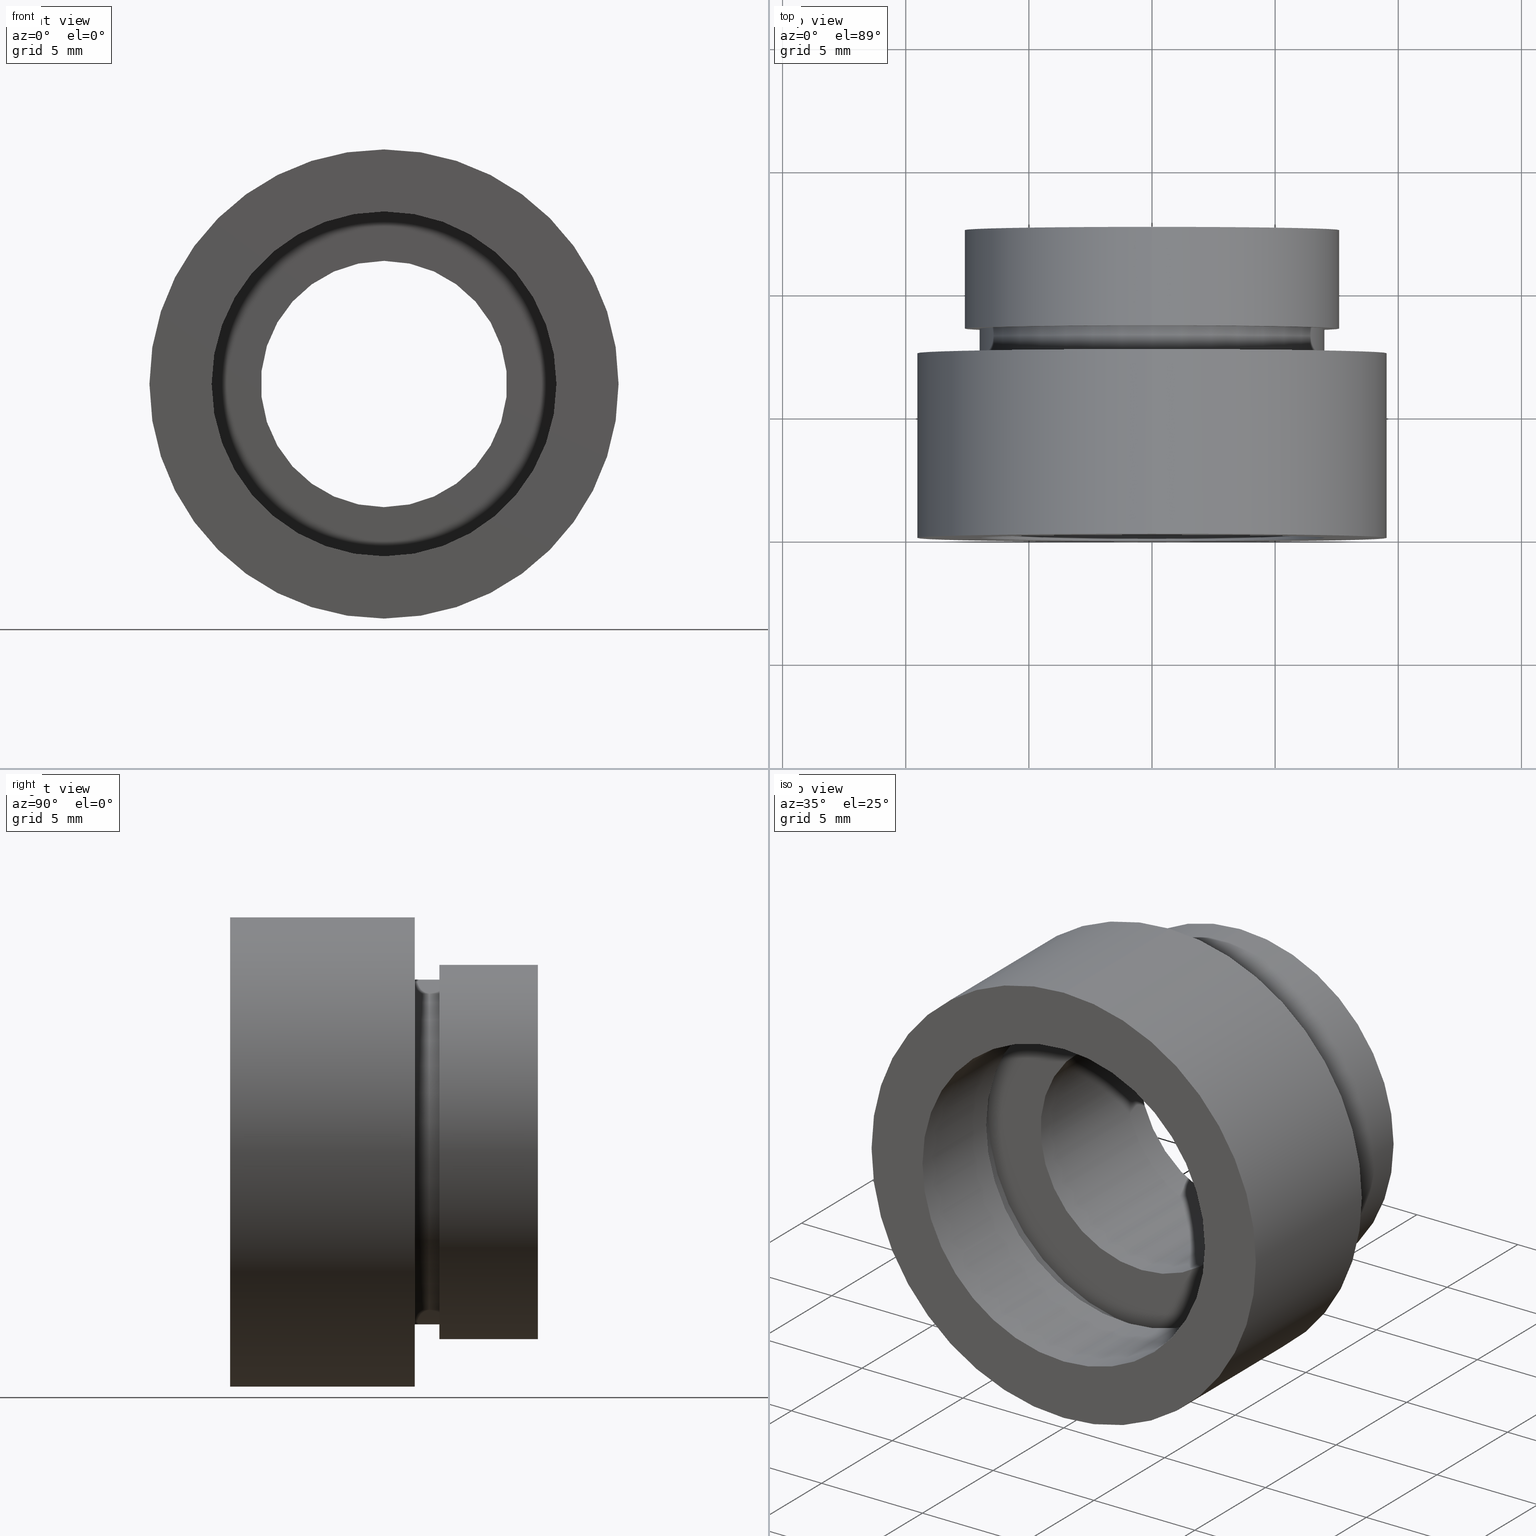
[diagram: canonical four-view strip — front | top / right | iso, engineering-drawing reading convention]
A machine part, canonical four-view strip (front | top / right | iso — engineering-drawing reading convention). The complete STEP part file that produces these views, byte-faithful:
ISO-10303-21;
HEADER;
FILE_DESCRIPTION (( 'STEP AP214' ),
    '1' );
FILE_NAME ('503093.STEP',
    '2019-09-11T07:29:55',
    ( '' ),
    ( '' ),
    'SwSTEP 2.0',
    'SolidWorks 2016',
    '' );
FILE_SCHEMA (( 'AUTOMOTIVE_DESIGN' ));
ENDSEC;

DATA;
#1 =( LENGTH_UNIT ( ) NAMED_UNIT ( * ) SI_UNIT ( .MILLI., .METRE. ) );
#2 = AXIS2_PLACEMENT_3D ( 'NONE', #516, #370, #565 ) ;
#3 = SURFACE_STYLE_FILL_AREA ( #72 ) ;
#4 = DIRECTION ( 'NONE',  ( -0.0000000000000000000, 1.000000000000000000, -0.0000000000000000000 ) ) ;
#5 = EDGE_LOOP ( 'NONE', ( #576, #388 ) ) ;
#6 = EDGE_CURVE ( 'NONE', #554, #219, #45, .T. ) ;
#7 = SURFACE_STYLE_USAGE ( .BOTH. , #226 ) ;
#8 = DIRECTION ( 'NONE',  ( 0.0000000000000000000, 0.0000000000000000000, 1.000000000000000000 ) ) ;
#9 = CARTESIAN_POINT ( 'NONE',  ( 0.0000000000000000000, 5.499999999999976900, 0.0000000000000000000 ) ) ;
#10 = DIRECTION ( 'NONE',  ( 0.0000000000000000000, -1.000000000000000000, 0.0000000000000000000 ) ) ;
#11 = EDGE_LOOP ( 'NONE', ( #195, #555, #615, #594 ) ) ;
#12 = VERTEX_POINT ( 'NONE', #309 ) ;
#13 = CARTESIAN_POINT ( 'NONE',  ( 0.0000000000000000000, 8.499999999999980500, 7.000000000000018700 ) ) ;
#14 = FILL_AREA_STYLE_COLOUR ( '', #183 ) ;
#15 = CIRCLE ( 'NONE', #502, 7.600000000000020100 ) ;
#16 = DIRECTION ( 'NONE',  ( -0.0000000000000000000, 1.000000000000000000, -0.0000000000000000000 ) ) ;
#17 = VERTEX_POINT ( 'NONE', #549 ) ;
#18 = ORIENTED_EDGE ( 'NONE', *, *, #113, .T. ) ;
#19 = AXIS2_PLACEMENT_3D ( 'NONE', #464, #519, #174 ) ;
#20 =( NAMED_UNIT ( * ) SI_UNIT ( $, .STERADIAN. ) SOLID_ANGLE_UNIT ( ) );
#21 = COLOUR_RGB ( '',1.000000000000000000, 1.000000000000000000, 1.000000000000000000 ) ;
#22 = AXIS2_PLACEMENT_3D ( 'NONE', #517, #315, #163 ) ;
#23 = MECHANICAL_DESIGN_GEOMETRIC_PRESENTATION_REPRESENTATION (  '', ( #64 ), #96 ) ;
#24 = CARTESIAN_POINT ( 'NONE',  ( 9.307315673519905200E-016, 8.499999999999980500, -7.600000000000018300 ) ) ;
#25 = VERTEX_POINT ( 'NONE', #250 ) ;
#26 = FILL_AREA_STYLE ('',( #119 ) ) ;
#27 = DIRECTION ( 'NONE',  ( 1.000000000000000000, 0.0000000000000000000, 0.0000000000000000000 ) ) ;
#28 =( NAMED_UNIT ( * ) SI_UNIT ( $, .STERADIAN. ) SOLID_ANGLE_UNIT ( ) );
#29 = COLOUR_RGB ( '',1.000000000000000000, 1.000000000000000000, 1.000000000000000000 ) ;
#30 = ORIENTED_EDGE ( 'NONE', *, *, #66, .F. ) ;
#31 = ORIENTED_EDGE ( 'NONE', *, *, #422, .T. ) ;
#32 = AXIS2_PLACEMENT_3D ( 'NONE', #212, #89, #463 ) ;
#33 = SURFACE_SIDE_STYLE ('',( #497 ) ) ;
#34 = FILL_AREA_STYLE_COLOUR ( '', #291 ) ;
#35 = CIRCLE ( 'NONE', #132, 9.525000000000019900 ) ;
#36 = CARTESIAN_POINT ( 'NONE',  ( 6.123233995736789000E-016, 5.499999999999976900, -5.000000000000019500 ) ) ;
#37 = VECTOR ( 'NONE', #221, 1000.000000000000000 ) ;
#38 = VERTEX_POINT ( 'NONE', #160 ) ;
#39 =( LENGTH_UNIT ( ) NAMED_UNIT ( * ) SI_UNIT ( .MILLI., .METRE. ) );
#40 = AXIS2_PLACEMENT_3D ( 'NONE', #83, #563, #125 ) ;
#41 = DIRECTION ( 'NONE',  ( -0.0000000000000000000, 1.000000000000000000, -0.0000000000000000000 ) ) ;
#42 = DIRECTION ( 'NONE',  ( -0.0000000000000000000, 1.000000000000000000, -0.0000000000000000000 ) ) ;
#43 = DIRECTION ( 'NONE',  ( -0.0000000000000000000, 1.000000000000000000, -0.0000000000000000000 ) ) ;
#44 = EDGE_CURVE ( 'NONE', #470, #505, #15, .T. ) ;
#45 = LINE ( 'NONE', #608, #417 ) ;
#46 = FILL_AREA_STYLE_COLOUR ( '', #449 ) ;
#47 = VERTEX_POINT ( 'NONE', #24 ) ;
#48 = DIRECTION ( 'NONE',  ( 0.0000000000000000000, 0.0000000000000000000, 1.000000000000000000 ) ) ;
#49 =( NAMED_UNIT ( * ) SI_UNIT ( $, .STERADIAN. ) SOLID_ANGLE_UNIT ( ) );
#50 =( NAMED_UNIT ( * ) PLANE_ANGLE_UNIT ( ) SI_UNIT ( $, .RADIAN. ) );
#51 = CYLINDRICAL_SURFACE ( 'NONE', #491, 7.000000000000018700 ) ;
#52 = DIRECTION ( 'NONE',  ( -0.0000000000000000000, 1.000000000000000000, -0.0000000000000000000 ) ) ;
#53 = CIRCLE ( 'NONE', #613, 9.525000000000019900 ) ;
#54 = CIRCLE ( 'NONE', #348, 7.000000000000018700 ) ;
#55 = EDGE_CURVE ( 'NONE', #219, #25, #458, .T. ) ;
#56 = AXIS2_PLACEMENT_3D ( 'NONE', #435, #16, #152 ) ;
#57 = DIRECTION ( 'NONE',  ( 0.0000000000000000000, -1.000000000000000000, 0.0000000000000000000 ) ) ;
#58 = FILL_AREA_STYLE ('',( #339 ) ) ;
#59 = PRESENTATION_STYLE_ASSIGNMENT (( #447 ) ) ;
#60 = CYLINDRICAL_SURFACE ( 'NONE', #335, 7.600000000000018300 ) ;
#61 = ADVANCED_FACE ( 'NONE', ( #546 ), #322, .T. ) ;
#62 = CYLINDRICAL_SURFACE ( 'NONE', #453, 7.000000000000018700 ) ;
#63 = ORIENTED_EDGE ( 'NONE', *, *, #220, .F. ) ;
#64 = STYLED_ITEM ( 'NONE', ( #337 ), #494 ) ;
#65 = ADVANCED_FACE ( 'NONE', ( #211, #426 ), #162, .F. ) ;
#66 = EDGE_CURVE ( 'NONE', #38, #122, #276, .T. ) ;
#67 = DIRECTION ( 'NONE',  ( 0.0000000000000000000, 0.0000000000000000000, 1.000000000000000000 ) ) ;
#68 = ADVANCED_FACE ( 'NONE', ( #331 ), #586, .F. ) ;
#69 = ORIENTED_EDGE ( 'NONE', *, *, #465, .F. ) ;
#70 = SURFACE_SIDE_STYLE ('',( #3 ) ) ;
#71 = ADVANCED_FACE ( 'NONE', ( #441 ), #184, .F. ) ;
#72 = FILL_AREA_STYLE ('',( #248 ) ) ;
#73 = DIRECTION ( 'NONE',  ( -0.0000000000000000000, 1.000000000000000000, -0.0000000000000000000 ) ) ;
#74 = SURFACE_SIDE_STYLE ('',( #134 ) ) ;
#75 = PRODUCT ( '503093', '503093', '', ( #501 ) ) ;
#76 = EDGE_CURVE ( 'NONE', #525, #468, #54, .T. ) ;
#77 = LINE ( 'NONE', #272, #515 ) ;
#78 = EDGE_LOOP ( 'NONE', ( #100, #353, #433, #419 ) ) ;
#79 = DIRECTION ( 'NONE',  ( -0.0000000000000000000, 1.000000000000000000, -0.0000000000000000000 ) ) ;
#80 = AXIS2_PLACEMENT_3D ( 'NONE', #567, #571, #577 ) ;
#81 = CIRCLE ( 'NONE', #288, 7.000000000000018700 ) ;
#82 = PRODUCT_DEFINITION_CONTEXT ( 'detailed design', #306, 'design' ) ;
#83 = CARTESIAN_POINT ( 'NONE',  ( 0.0000000000000000000, 161.3761669434274500, 0.0000000000000000000 ) ) ;
#84 = ORIENTED_EDGE ( 'NONE', *, *, #432, .F. ) ;
#85 = ORIENTED_EDGE ( 'NONE', *, *, #66, .T. ) ;
#86 = EDGE_CURVE ( 'NONE', #47, #554, #561, .T. ) ;
#87 = AXIS2_PLACEMENT_3D ( 'NONE', #552, #351, #156 ) ;
#88 = SURFACE_STYLE_USAGE ( .BOTH. , #135 ) ;
#89 = DIRECTION ( 'NONE',  ( -0.0000000000000000000, 1.000000000000000000, -0.0000000000000000000 ) ) ;
#90 = FACE_OUTER_BOUND ( 'NONE', #161, .T. ) ;
#91 = CARTESIAN_POINT ( 'NONE',  ( 0.0000000000000000000, 8.499999999999980500, 0.0000000000000000000 ) ) ;
#92 = COLOUR_RGB ( '',1.000000000000000000, 1.000000000000000000, 1.000000000000000000 ) ;
#93 = ORIENTED_EDGE ( 'NONE', *, *, #86, .F. ) ;
#94 = EDGE_LOOP ( 'NONE', ( #381, #504 ) ) ;
#95 = CARTESIAN_POINT ( 'NONE',  ( 0.0000000000000000000, 12.49999999999998400, 7.600000000000018300 ) ) ;
#96 =( GEOMETRIC_REPRESENTATION_CONTEXT ( 3 ) GLOBAL_UNCERTAINTY_ASSIGNED_CONTEXT ( ( #110 ) ) GLOBAL_UNIT_ASSIGNED_CONTEXT ( ( #347, #539, #49 ) ) REPRESENTATION_CONTEXT ( 'NONE', 'WORKASPACE' ) );
#97 = DIRECTION ( 'NONE',  ( -0.0000000000000000000, 1.000000000000000000, -0.0000000000000000000 ) ) ;
#98 = PRESENTATION_LAYER_ASSIGNMENT (  '', '', ( #520 ) ) ;
#99 = DIRECTION ( 'NONE',  ( 0.0000000000000000000, 0.0000000000000000000, 1.000000000000000000 ) ) ;
#100 = ORIENTED_EDGE ( 'NONE', *, *, #358, .F. ) ;
#101 = CARTESIAN_POINT ( 'NONE',  ( 0.0000000000000000000, 161.3761669434274500, 0.0000000000000000000 ) ) ;
#102 = CARTESIAN_POINT ( 'NONE',  ( 7.000000000000020400, 4.499999999999983100, 0.0000000000000000000 ) ) ;
#103 = EDGE_CURVE ( 'NONE', #444, #151, #300, .T. ) ;
#104 = AXIS2_PLACEMENT_3D ( 'NONE', #325, #43, #265 ) ;
#105 = ORIENTED_EDGE ( 'NONE', *, *, #357, .T. ) ;
#106 = DIRECTION ( 'NONE',  ( -0.0000000000000000000, 1.000000000000000000, -0.0000000000000000000 ) ) ;
#107 = ORIENTED_EDGE ( 'NONE', *, *, #377, .T. ) ;
#108 = EDGE_CURVE ( 'NONE', #459, #556, #316, .T. ) ;
#109 = DIRECTION ( 'NONE',  ( 0.0000000000000000000, 0.0000000000000000000, 1.000000000000000000 ) ) ;
#110 = UNCERTAINTY_MEASURE_WITH_UNIT (LENGTH_MEASURE( 1.000000000000000100E-005 ), #347, 'distance_accuracy_value', 'NONE');
#111 = VERTEX_POINT ( 'NONE', #317 ) ;
#112 =( GEOMETRIC_REPRESENTATION_CONTEXT ( 3 ) GLOBAL_UNCERTAINTY_ASSIGNED_CONTEXT ( ( #413 ) ) GLOBAL_UNIT_ASSIGNED_CONTEXT ( ( #610, #389, #305 ) ) REPRESENTATION_CONTEXT ( 'NONE', 'WORKASPACE' ) );
#113 = EDGE_CURVE ( 'NONE', #251, #12, #81, .T. ) ;
#114 = APPLICATION_PROTOCOL_DEFINITION ( 'draft international standard', 'automotive_design', 1998, #306 ) ;
#115 = CARTESIAN_POINT ( 'NONE',  ( 7.000000000000019500, -1.650046791174882700E-014, 0.0000000000000000000 ) ) ;
#116 = ORIENTED_EDGE ( 'NONE', *, *, #377, .F. ) ;
#117 = EDGE_LOOP ( 'NONE', ( #159, #277, #311, #478 ) ) ;
#118 = ORIENTED_EDGE ( 'NONE', *, *, #108, .T. ) ;
#119 = FILL_AREA_STYLE_COLOUR ( '', #180 ) ;
#120 = STYLED_ITEM ( 'NONE', ( #59 ), #595 ) ;
#121 = SURFACE_STYLE_FILL_AREA ( #521 ) ;
#122 = VERTEX_POINT ( 'NONE', #36 ) ;
#123 = MECHANICAL_DESIGN_GEOMETRIC_PRESENTATION_REPRESENTATION (  '', ( #247 ), #455 ) ;
#124 =( NAMED_UNIT ( * ) SI_UNIT ( $, .STERADIAN. ) SOLID_ANGLE_UNIT ( ) );
#125 = DIRECTION ( 'NONE',  ( 0.0000000000000000000, 0.0000000000000000000, 1.000000000000000000 ) ) ;
#126 = CARTESIAN_POINT ( 'NONE',  ( 0.0000000000000000000, 7.499999999999978700, 0.0000000000000000000 ) ) ;
#127 = CARTESIAN_POINT ( 'NONE',  ( 0.0000000000000000000, 7.499999999999978700, 9.525000000000019900 ) ) ;
#128 = VERTEX_POINT ( 'NONE', #620 ) ;
#129 = DIRECTION ( 'NONE',  ( 0.0000000000000000000, 0.0000000000000000000, 1.000000000000000000 ) ) ;
#130 = EDGE_CURVE ( 'NONE', #609, #600, #166, .T. ) ;
#131 = CARTESIAN_POINT ( 'NONE',  ( 0.0000000000000000000, 161.3761669434274500, 0.0000000000000000000 ) ) ;
#132 = AXIS2_PLACEMENT_3D ( 'NONE', #318, #224, #473 ) ;
#133 = DIRECTION ( 'NONE',  ( -0.0000000000000000000, 1.000000000000000000, -0.0000000000000000000 ) ) ;
#134 = SURFACE_STYLE_FILL_AREA ( #26 ) ;
#135 = SURFACE_SIDE_STYLE ('',( #385 ) ) ;
#136 = VERTEX_POINT ( 'NONE', #513 ) ;
#137 = EDGE_LOOP ( 'NONE', ( #562, #93 ) ) ;
#138 = CARTESIAN_POINT ( 'NONE',  ( 0.0000000000000000000, 161.3761669434274500, 0.0000000000000000000 ) ) ;
#139 = CARTESIAN_POINT ( 'NONE',  ( 0.0000000000000000000, -2.775557561562891400E-014, 0.0000000000000000000 ) ) ;
#140 = PRODUCT_RELATED_PRODUCT_CATEGORY ( 'part', '', ( #75 ) ) ;
#141 = CARTESIAN_POINT ( 'NONE',  ( 0.0000000000000000000, 4.499999999999976000, 7.000000000000020400 ) ) ;
#142 = PLANE ( 'NONE',  #477 ) ;
#143 = PRESENTATION_STYLE_ASSIGNMENT (( #379 ) ) ;
#144 = EDGE_CURVE ( 'NONE', #17, #498, #392, .T. ) ;
#145 = AXIS2_PLACEMENT_3D ( 'NONE', #281, #299, #602 ) ;
#146 = CIRCLE ( 'NONE', #323, 5.000000000000019500 ) ;
#147 = EDGE_LOOP ( 'NONE', ( #85, #548 ) ) ;
#148 = CARTESIAN_POINT ( 'NONE',  ( 0.0000000000000000000, 7.499999999999978700, 0.0000000000000000000 ) ) ;
#149 = CIRCLE ( 'NONE', #80, 7.000000000000019500 ) ;
#150 = PRESENTATION_LAYER_ASSIGNMENT (  '', '', ( #120 ) ) ;
#151 = VERTEX_POINT ( 'NONE', #127 ) ;
#152 = DIRECTION ( 'NONE',  ( 0.0000000000000000000, 0.0000000000000000000, 1.000000000000000000 ) ) ;
#153 = DIRECTION ( 'NONE',  ( 0.0000000000000000000, 0.0000000000000000000, 1.000000000000000000 ) ) ;
#154 = FACE_OUTER_BOUND ( 'NONE', #564, .T. ) ;
#155 = PRODUCT_DEFINITION_FORMATION_WITH_SPECIFIED_SOURCE ( '�κ�', '', #75, .NOT_KNOWN. ) ;
#156 = DIRECTION ( 'NONE',  ( 0.0000000000000000000, 0.0000000000000000000, 1.000000000000000000 ) ) ;
#157 =( GEOMETRIC_REPRESENTATION_CONTEXT ( 3 ) GLOBAL_UNCERTAINTY_ASSIGNED_CONTEXT ( ( #535 ) ) GLOBAL_UNIT_ASSIGNED_CONTEXT ( ( #456, #616, #124 ) ) REPRESENTATION_CONTEXT ( 'NONE', 'WORKASPACE' ) );
#158 = AXIS2_PLACEMENT_3D ( 'NONE', #292, #597, #439 ) ;
#159 = ORIENTED_EDGE ( 'NONE', *, *, #365, .T. ) ;
#160 = CARTESIAN_POINT ( 'NONE',  ( 0.0000000000000000000, 5.499999999999976900, 5.000000000000019500 ) ) ;
#161 = EDGE_LOOP ( 'NONE', ( #406, #507 ) ) ;
#162 = PLANE ( 'NONE',  #532 ) ;
#163 = DIRECTION ( 'NONE',  ( 0.0000000000000000000, 0.0000000000000000000, 1.000000000000000000 ) ) ;
#164 = LINE ( 'NONE', #336, #560 ) ;
#165 = SURFACE_STYLE_USAGE ( .BOTH. , #33 ) ;
#166 = CIRCLE ( 'NONE', #617, 7.600000000000019200 ) ;
#167 = ORIENTED_EDGE ( 'NONE', *, *, #266, .F. ) ;
#168 = EDGE_CURVE ( 'NONE', #122, #38, #146, .T. ) ;
#169 = AXIS2_PLACEMENT_3D ( 'NONE', #279, #540, #8 ) ;
#170 = CARTESIAN_POINT ( 'NONE',  ( 0.0000000000000000000, 12.49999999999998400, 0.0000000000000000000 ) ) ;
#171 = DIRECTION ( 'NONE',  ( -0.0000000000000000000, 1.000000000000000000, -0.0000000000000000000 ) ) ;
#172 = COLOUR_RGB ( '',1.000000000000000000, 1.000000000000000000, 1.000000000000000000 ) ;
#173 = LINE ( 'NONE', #624, #523 ) ;
#174 = DIRECTION ( 'NONE',  ( 0.0000000000000000000, 0.0000000000000000000, 1.000000000000000000 ) ) ;
#175 = LINE ( 'NONE', #587, #234 ) ;
#176 = ORIENTED_EDGE ( 'NONE', *, *, #387, .T. ) ;
#177 = FILL_AREA_STYLE_COLOUR ( '', #92 ) ;
#178 =( GEOMETRIC_REPRESENTATION_CONTEXT ( 3 ) GLOBAL_UNCERTAINTY_ASSIGNED_CONTEXT ( ( #529 ) ) GLOBAL_UNIT_ASSIGNED_CONTEXT ( ( #200, #506, #28 ) ) REPRESENTATION_CONTEXT ( 'NONE', 'WORKASPACE' ) );
#179 = DIRECTION ( 'NONE',  ( 0.0000000000000000000, 0.0000000000000000000, 1.000000000000000000 ) ) ;
#180 = COLOUR_RGB ( '',1.000000000000000000, 1.000000000000000000, 1.000000000000000000 ) ;
#181 = CARTESIAN_POINT ( 'NONE',  ( 0.0000000000000000000, 5.499999999999976900, 7.600000000000020100 ) ) ;
#182 = AXIS2_PLACEMENT_3D ( 'NONE', #420, #133, #48 ) ;
#183 = COLOUR_RGB ( '',1.000000000000000000, 1.000000000000000000, 1.000000000000000000 ) ;
#184 = CYLINDRICAL_SURFACE ( 'NONE', #40, 7.600000000000020100 ) ;
#185 = DIRECTION ( 'NONE',  ( 0.0000000000000000000, -0.0000000000000000000, -1.000000000000000000 ) ) ;
#186 = UNCERTAINTY_MEASURE_WITH_UNIT (LENGTH_MEASURE( 1.000000000000000100E-005 ), #430, 'distance_accuracy_value', 'NONE');
#187 = DIRECTION ( 'NONE',  ( -0.0000000000000000000, 1.000000000000000000, 0.0000000000000000000 ) ) ;
#188 = EDGE_CURVE ( 'NONE', #12, #251, #284, .T. ) ;
#189 = CARTESIAN_POINT ( 'NONE',  ( 7.600000000000018300, 12.49999999999998400, 0.0000000000000000000 ) ) ;
#190 =( NAMED_UNIT ( * ) PLANE_ANGLE_UNIT ( ) SI_UNIT ( $, .RADIAN. ) );
#191 = FACE_BOUND ( 'NONE', #286, .T. ) ;
#192 = VECTOR ( 'NONE', #427, 1000.000000000000000 ) ;
#193 = EDGE_CURVE ( 'NONE', #538, #128, #77, .T. ) ;
#194 = AXIS2_PLACEMENT_3D ( 'NONE', #101, #329, #109 ) ;
#195 = ORIENTED_EDGE ( 'NONE', *, *, #496, .F. ) ;
#196 = EDGE_LOOP ( 'NONE', ( #18, #526 ) ) ;
#197 = ADVANCED_FACE ( 'NONE', ( #154 ), #62, .T. ) ;
#198 = SHAPE_DEFINITION_REPRESENTATION ( #410, #492 ) ;
#199 = VECTOR ( 'NONE', #368, 1000.000000000000000 ) ;
#200 =( LENGTH_UNIT ( ) NAMED_UNIT ( * ) SI_UNIT ( .MILLI., .METRE. ) );
#201 = ORIENTED_EDGE ( 'NONE', *, *, #113, .F. ) ;
#202 = DIRECTION ( 'NONE',  ( 0.0000000000000000000, 0.0000000000000000000, 1.000000000000000000 ) ) ;
#203 = EDGE_CURVE ( 'NONE', #538, #17, #575, .T. ) ;
#204 = MECHANICAL_DESIGN_GEOMETRIC_PRESENTATION_REPRESENTATION (  '', ( #120 ), #178 ) ;
#205 = CARTESIAN_POINT ( 'NONE',  ( 0.0000000000000000000, 0.0000000000000000000, 0.0000000000000000000 ) ) ;
#206 = PRESENTATION_STYLE_ASSIGNMENT (( #7 ) ) ;
#207 = ORIENTED_EDGE ( 'NONE', *, *, #6, .F. ) ;
#208 = CARTESIAN_POINT ( 'NONE',  ( 0.0000000000000000000, 8.499999999999980500, 7.600000000000018300 ) ) ;
#209 =( GEOMETRIC_REPRESENTATION_CONTEXT ( 3 ) GLOBAL_UNCERTAINTY_ASSIGNED_CONTEXT ( ( #557 ) ) GLOBAL_UNIT_ASSIGNED_CONTEXT ( ( #355, #606, #20 ) ) REPRESENTATION_CONTEXT ( 'NONE', 'WORKASPACE' ) );
#210 = CYLINDRICAL_SURFACE ( 'NONE', #2, 5.000000000000019500 ) ;
#211 = FACE_OUTER_BOUND ( 'NONE', #137, .T. ) ;
#212 = CARTESIAN_POINT ( 'NONE',  ( 0.0000000000000000000, 161.3761669434274500, 0.0000000000000000000 ) ) ;
#213 = DIRECTION ( 'NONE',  ( -0.0000000000000000000, 1.000000000000000000, -0.0000000000000000000 ) ) ;
#214 = EDGE_CURVE ( 'NONE', #122, #556, #175, .T. ) ;
#215 = DIRECTION ( 'NONE',  ( 0.0000000000000000000, 0.0000000000000000000, 1.000000000000000000 ) ) ;
#216 = DIRECTION ( 'NONE',  ( 0.0000000000000000000, 0.0000000000000000000, 1.000000000000000000 ) ) ;
#217 = DIRECTION ( 'NONE',  ( -0.0000000000000000000, 1.000000000000000000, -0.0000000000000000000 ) ) ;
#218 = ORIENTED_EDGE ( 'NONE', *, *, #496, .T. ) ;
#219 = VERTEX_POINT ( 'NONE', #95 ) ;
#220 = EDGE_CURVE ( 'NONE', #38, #459, #173, .T. ) ;
#221 = DIRECTION ( 'NONE',  ( -0.0000000000000000000, 1.000000000000000000, -0.0000000000000000000 ) ) ;
#222 = AXIS2_PLACEMENT_3D ( 'NONE', #378, #187, #534 ) ;
#223 = CARTESIAN_POINT ( 'NONE',  ( 0.0000000000000000000, -2.775557561562891400E-014, 0.0000000000000000000 ) ) ;
#224 = DIRECTION ( 'NONE',  ( -0.0000000000000000000, 1.000000000000000000, -0.0000000000000000000 ) ) ;
#225 = DIRECTION ( 'NONE',  ( -0.0000000000000000000, 1.000000000000000000, -0.0000000000000000000 ) ) ;
#226 = SURFACE_SIDE_STYLE ('',( #352 ) ) ;
#227 = ORIENTED_EDGE ( 'NONE', *, *, #55, .F. ) ;
#228 = CARTESIAN_POINT ( 'NONE',  ( 0.0000000000000000000, 161.3761669434274500, 7.000000000000018700 ) ) ;
#229 = CARTESIAN_POINT ( 'NONE',  ( 1.166476076187856400E-015, 161.3761669434274500, -9.525000000000019900 ) ) ;
#230 = CARTESIAN_POINT ( 'NONE',  ( 0.0000000000000000000, 161.3761669434274500, 0.0000000000000000000 ) ) ;
#231 = EDGE_CURVE ( 'NONE', #111, #136, #320, .T. ) ;
#232 =( NAMED_UNIT ( * ) SI_UNIT ( $, .STERADIAN. ) SOLID_ANGLE_UNIT ( ) );
#233 = CIRCLE ( 'NONE', #104, 7.600000000000020100 ) ;
#234 = VECTOR ( 'NONE', #480, 1000.000000000000000 ) ;
#235 = ORIENTED_EDGE ( 'NONE', *, *, #282, .F. ) ;
#236 = DIRECTION ( 'NONE',  ( 0.0000000000000000000, 0.0000000000000000000, 1.000000000000000000 ) ) ;
#237 = ORIENTED_EDGE ( 'NONE', *, *, #589, .F. ) ;
#238 = ADVANCED_FACE ( 'NONE', ( #574 ), #338, .T. ) ;
#239 = PRESENTATION_STYLE_ASSIGNMENT (( #542 ) ) ;
#240 = PLANE ( 'NONE',  #522 ) ;
#241 = STYLED_ITEM ( 'NONE', ( #239 ), #492 ) ;
#242 = EDGE_LOOP ( 'NONE', ( #510, #218, #227, #207 ) ) ;
#243 = ORIENTED_EDGE ( 'NONE', *, *, #130, .T. ) ;
#244 = EDGE_LOOP ( 'NONE', ( #176, #612 ) ) ;
#245 = CARTESIAN_POINT ( 'NONE',  ( 0.0000000000000000000, 12.49999999999998400, 5.000000000000019500 ) ) ;
#246 = ADVANCED_FACE ( 'NONE', ( #391 ), #593, .F. ) ;
#247 = STYLED_ITEM ( 'NONE', ( #585 ), #238 ) ;
#248 = FILL_AREA_STYLE_COLOUR ( '', #21 ) ;
#249 = SURFACE_STYLE_FILL_AREA ( #58 ) ;
#250 = CARTESIAN_POINT ( 'NONE',  ( 9.307315673519905200E-016, 12.49999999999998400, -7.600000000000018300 ) ) ;
#251 = VERTEX_POINT ( 'NONE', #13 ) ;
#252 = CARTESIAN_POINT ( 'NONE',  ( 0.0000000000000000000, 5.499999999999976900, 0.0000000000000000000 ) ) ;
#253 = CARTESIAN_POINT ( 'NONE',  ( 0.0000000000000000000, 4.499999999999976000, 0.0000000000000000000 ) ) ;
#254 = AXIS2_PLACEMENT_3D ( 'NONE', #622, #217, #314 ) ;
#255 = AXIS2_PLACEMENT_3D ( 'NONE', #126, #364, #327 ) ;
#256 = CARTESIAN_POINT ( 'NONE',  ( 0.0000000000000000000, 4.499999999999976000, 7.600000000000019200 ) ) ;
#257 = CIRCLE ( 'NONE', #533, 9.525000000000019900 ) ;
#258 = EDGE_LOOP ( 'NONE', ( #237, #361, #537, #167 ) ) ;
#259 = ORIENTED_EDGE ( 'NONE', *, *, #193, .T. ) ;
#260 = ORIENTED_EDGE ( 'NONE', *, *, #214, .F. ) ;
#261 = DIRECTION ( 'NONE',  ( 0.0000000000000000000, 0.0000000000000000000, 1.000000000000000000 ) ) ;
#262 = DIRECTION ( 'NONE',  ( -0.0000000000000000000, 1.000000000000000000, -0.0000000000000000000 ) ) ;
#263 = FACE_OUTER_BOUND ( 'NONE', #452, .T. ) ;
#264 = FACE_BOUND ( 'NONE', #147, .T. ) ;
#265 = DIRECTION ( 'NONE',  ( 0.0000000000000000000, 0.0000000000000000000, 1.000000000000000000 ) ) ;
#266 = EDGE_CURVE ( 'NONE', #609, #505, #164, .T. ) ;
#267 = DIRECTION ( 'NONE',  ( 0.0000000000000000000, 0.0000000000000000000, 1.000000000000000000 ) ) ;
#268 = ORIENTED_EDGE ( 'NONE', *, *, #220, .T. ) ;
#269 = CARTESIAN_POINT ( 'NONE',  ( 0.0000000000000000000, -2.775557561562891400E-014, 0.0000000000000000000 ) ) ;
#270 = DIRECTION ( 'NONE',  ( 0.0000000000000000000, 0.0000000000000000000, 1.000000000000000000 ) ) ;
#271 = CARTESIAN_POINT ( 'NONE',  ( 9.307315673519909100E-016, 161.3761669434274500, -7.600000000000020100 ) ) ;
#272 = CARTESIAN_POINT ( 'NONE',  ( 8.572527594031496900E-016, 161.3761669434274500, -7.000000000000020400 ) ) ;
#273 = DIRECTION ( 'NONE',  ( 0.0000000000000000000, 0.0000000000000000000, 1.000000000000000000 ) ) ;
#274 = CIRCLE ( 'NONE', #596, 7.000000000000020400 ) ;
#275 = CARTESIAN_POINT ( 'NONE',  ( 0.0000000000000000000, 4.499999999999976000, 0.0000000000000000000 ) ) ;
#276 = CIRCLE ( 'NONE', #22, 5.000000000000019500 ) ;
#277 = ORIENTED_EDGE ( 'NONE', *, *, #231, .T. ) ;
#278 = PRESENTATION_LAYER_ASSIGNMENT (  '', '', ( #241 ) ) ;
#279 = CARTESIAN_POINT ( 'NONE',  ( 0.0000000000000000000, 161.3761669434274500, 0.0000000000000000000 ) ) ;
#280 = DIRECTION ( 'NONE',  ( -0.0000000000000000000, 1.000000000000000000, -0.0000000000000000000 ) ) ;
#281 = CARTESIAN_POINT ( 'NONE',  ( 0.0000000000000000000, 8.499999999999980500, 0.0000000000000000000 ) ) ;
#282 = EDGE_CURVE ( 'NONE', #468, #12, #604, .T. ) ;
#283 = FACE_OUTER_BOUND ( 'NONE', #5, .T. ) ;
#284 = CIRCLE ( 'NONE', #383, 7.000000000000018700 ) ;
#285 = SURFACE_SIDE_STYLE ('',( #249 ) ) ;
#286 = EDGE_LOOP ( 'NONE', ( #512, #116 ) ) ;
#287 = CARTESIAN_POINT ( 'NONE',  ( 8.572527594031494900E-016, 161.3761669434274500, -7.000000000000018700 ) ) ;
#288 = AXIS2_PLACEMENT_3D ( 'NONE', #360, #408, #401 ) ;
#289 = STYLED_ITEM ( 'NONE', ( #570 ), #434 ) ;
#290 = UNCERTAINTY_MEASURE_WITH_UNIT (LENGTH_MEASURE( 1.000000000000000100E-005 ), #39, 'distance_accuracy_value', 'NONE');
#291 = COLOUR_RGB ( '',1.000000000000000000, 1.000000000000000000, 1.000000000000000000 ) ;
#292 = CARTESIAN_POINT ( 'NONE',  ( 0.0000000000000000000, 4.499999999999976000, 0.0000000000000000000 ) ) ;
#293 = EDGE_LOOP ( 'NONE', ( #607, #259, #404, #394 ) ) ;
#294 = ORIENTED_EDGE ( 'NONE', *, *, #589, .T. ) ;
#295 = ADVANCED_FACE ( 'NONE', ( #572, #380 ), #142, .F. ) ;
#296 = DIRECTION ( 'NONE',  ( -0.0000000000000000000, 1.000000000000000000, -0.0000000000000000000 ) ) ;
#297 = ADVANCED_FACE ( 'NONE', ( #508, #484 ), #591, .F. ) ;
#298 = FACE_OUTER_BOUND ( 'NONE', #623, .T. ) ;
#299 = DIRECTION ( 'NONE',  ( -0.0000000000000000000, 1.000000000000000000, -0.0000000000000000000 ) ) ;
#300 = LINE ( 'NONE', #566, #524 ) ;
#301 = ORIENTED_EDGE ( 'NONE', *, *, #76, .T. ) ;
#302 = EDGE_LOOP ( 'NONE', ( #578, #105 ) ) ;
#303 = EDGE_CURVE ( 'NONE', #151, #136, #53, .T. ) ;
#304 = AXIS2_PLACEMENT_3D ( 'NONE', #476, #280, #334 ) ;
#305 =( NAMED_UNIT ( * ) SI_UNIT ( $, .STERADIAN. ) SOLID_ANGLE_UNIT ( ) );
#306 = APPLICATION_CONTEXT ( 'automotive_design' ) ;
#307 = CIRCLE ( 'NONE', #344, 9.525000000000019900 ) ;
#308 = LINE ( 'NONE', #271, #398 ) ;
#309 = CARTESIAN_POINT ( 'NONE',  ( 8.572527594031494900E-016, 8.499999999999980500, -7.000000000000018700 ) ) ;
#310 = DIRECTION ( 'NONE',  ( -0.0000000000000000000, 1.000000000000000000, 0.0000000000000000000 ) ) ;
#311 = ORIENTED_EDGE ( 'NONE', *, *, #303, .F. ) ;
#312 = ORIENTED_EDGE ( 'NONE', *, *, #527, .F. ) ;
#313 = MECHANICAL_DESIGN_GEOMETRIC_PRESENTATION_REPRESENTATION (  '', ( #289 ), #545 ) ;
#314 = DIRECTION ( 'NONE',  ( 0.0000000000000000000, 0.0000000000000000000, 1.000000000000000000 ) ) ;
#315 = DIRECTION ( 'NONE',  ( -0.0000000000000000000, 1.000000000000000000, -0.0000000000000000000 ) ) ;
#316 = CIRCLE ( 'NONE', #605, 5.000000000000019500 ) ;
#317 = CARTESIAN_POINT ( 'NONE',  ( 1.166476076187856400E-015, -2.775557561562891400E-014, -9.525000000000019900 ) ) ;
#318 = CARTESIAN_POINT ( 'NONE',  ( 0.0000000000000000000, 7.499999999999978700, 0.0000000000000000000 ) ) ;
#319 = CYLINDRICAL_SURFACE ( 'NONE', #56, 7.000000000000020400 ) ;
#320 = LINE ( 'NONE', #229, #199 ) ;
#321 = FILL_AREA_STYLE ('',( #421 ) ) ;
#322 = CYLINDRICAL_SURFACE ( 'NONE', #568, 9.525000000000019900 ) ;
#323 = AXIS2_PLACEMENT_3D ( 'NONE', #9, #469, #573 ) ;
#324 = ORIENTED_EDGE ( 'NONE', *, *, #188, .F. ) ;
#325 = CARTESIAN_POINT ( 'NONE',  ( 0.0000000000000000000, 5.499999999999976900, 0.0000000000000000000 ) ) ;
#326 =( NAMED_UNIT ( * ) PLANE_ANGLE_UNIT ( ) SI_UNIT ( $, .RADIAN. ) );
#327 = DIRECTION ( 'NONE',  ( 0.0000000000000000000, 0.0000000000000000000, 1.000000000000000000 ) ) ;
#328 = SURFACE_SIDE_STYLE ('',( #121 ) ) ;
#329 = DIRECTION ( 'NONE',  ( -0.0000000000000000000, 1.000000000000000000, -0.0000000000000000000 ) ) ;
#330 =( LENGTH_UNIT ( ) NAMED_UNIT ( * ) SI_UNIT ( .MILLI., .METRE. ) );
#331 = FACE_OUTER_BOUND ( 'NONE', #489, .T. ) ;
#332 = CARTESIAN_POINT ( 'NONE',  ( 9.525000000000019900, 7.499999999999984000, 0.0000000000000000000 ) ) ;
#333 = ORIENTED_EDGE ( 'NONE', *, *, #214, .T. ) ;
#334 = DIRECTION ( 'NONE',  ( 0.0000000000000000000, 0.0000000000000000000, 1.000000000000000000 ) ) ;
#335 = AXIS2_PLACEMENT_3D ( 'NONE', #230, #486, #216 ) ;
#336 = CARTESIAN_POINT ( 'NONE',  ( 0.0000000000000000000, 161.3761669434274500, 7.600000000000020100 ) ) ;
#337 = PRESENTATION_STYLE_ASSIGNMENT (( #528 ) ) ;
#338 = CYLINDRICAL_SURFACE ( 'NONE', #182, 7.600000000000018300 ) ;
#339 = FILL_AREA_STYLE_COLOUR ( '', #172 ) ;
#340 = EDGE_LOOP ( 'NONE', ( #536, #69 ) ) ;
#341 = ADVANCED_FACE ( 'NONE', ( #90, #264 ), #531, .F. ) ;
#342 = EDGE_LOOP ( 'NONE', ( #235, #107, #395, #324 ) ) ;
#343 = FILL_AREA_STYLE ('',( #14 ) ) ;
#344 = AXIS2_PLACEMENT_3D ( 'NONE', #139, #296, #67 ) ;
#345 = FACE_OUTER_BOUND ( 'NONE', #258, .T. ) ;
#346 = ADVANCED_FACE ( 'NONE', ( #543 ), #60, .T. ) ;
#347 =( LENGTH_UNIT ( ) NAMED_UNIT ( * ) SI_UNIT ( .MILLI., .METRE. ) );
#348 = AXIS2_PLACEMENT_3D ( 'NONE', #511, #262, #270 ) ;
#349 = DIRECTION ( 'NONE',  ( -0.0000000000000000000, 1.000000000000000000, -0.0000000000000000000 ) ) ;
#350 = VECTOR ( 'NONE', #97, 1000.000000000000000 ) ;
#351 = DIRECTION ( 'NONE',  ( -0.0000000000000000000, 1.000000000000000000, -0.0000000000000000000 ) ) ;
#352 = SURFACE_STYLE_FILL_AREA ( #423 ) ;
#353 = ORIENTED_EDGE ( 'NONE', *, *, #130, .F. ) ;
#354 = ORIENTED_EDGE ( 'NONE', *, *, #465, .T. ) ;
#355 =( LENGTH_UNIT ( ) NAMED_UNIT ( * ) SI_UNIT ( .MILLI., .METRE. ) );
#356 = EDGE_LOOP ( 'NONE', ( #243, #294 ) ) ;
#357 = EDGE_CURVE ( 'NONE', #25, #219, #553, .T. ) ;
#358 = EDGE_CURVE ( 'NONE', #600, #470, #308, .T. ) ;
#359 = SURFACE_STYLE_FILL_AREA ( #343 ) ;
#360 = CARTESIAN_POINT ( 'NONE',  ( 0.0000000000000000000, 8.499999999999980500, 0.0000000000000000000 ) ) ;
#361 = ORIENTED_EDGE ( 'NONE', *, *, #358, .T. ) ;
#362 = DIRECTION ( 'NONE',  ( -0.0000000000000000000, 1.000000000000000000, 0.0000000000000000000 ) ) ;
#363 = LINE ( 'NONE', #374, #350 ) ;
#364 = DIRECTION ( 'NONE',  ( -0.0000000000000000000, 1.000000000000000000, -0.0000000000000000000 ) ) ;
#365 = EDGE_CURVE ( 'NONE', #444, #111, #257, .T. ) ;
#366 = PRESENTATION_LAYER_ASSIGNMENT (  '', '', ( #64 ) ) ;
#367 = DIRECTION ( 'NONE',  ( -0.0000000000000000000, 1.000000000000000000, -0.0000000000000000000 ) ) ;
#368 = DIRECTION ( 'NONE',  ( -0.0000000000000000000, 1.000000000000000000, -0.0000000000000000000 ) ) ;
#369 = FACE_OUTER_BOUND ( 'NONE', #340, .T. ) ;
#370 = DIRECTION ( 'NONE',  ( -0.0000000000000000000, 1.000000000000000000, -0.0000000000000000000 ) ) ;
#371 =( NAMED_UNIT ( * ) SI_UNIT ( $, .STERADIAN. ) SOLID_ANGLE_UNIT ( ) );
#372 = MECHANICAL_DESIGN_GEOMETRIC_PRESENTATION_REPRESENTATION (  '', ( #241 ), #112 ) ;
#373 = CLOSED_SHELL ( 'NONE', ( #246, #485, #434, #238, #197, #61, #551, #440, #445, #436, #65, #346, #297, #68, #341, #71, #295, #494 ) ) ;
#374 = CARTESIAN_POINT ( 'NONE',  ( 9.307315673519905200E-016, 161.3761669434274500, -7.600000000000018300 ) ) ;
#375 =( NAMED_UNIT ( * ) SI_UNIT ( $, .STERADIAN. ) SOLID_ANGLE_UNIT ( ) );
#376 = CARTESIAN_POINT ( 'NONE',  ( 8.572527594031494900E-016, 7.499999999999978700, -7.000000000000018700 ) ) ;
#377 = EDGE_CURVE ( 'NONE', #468, #525, #412, .T. ) ;
#378 = CARTESIAN_POINT ( 'NONE',  ( 7.600000000000020100, 5.499999999999984000, 0.0000000000000000000 ) ) ;
#379 = SURFACE_STYLE_USAGE ( .BOTH. , #285 ) ;
#380 = FACE_OUTER_BOUND ( 'NONE', #356, .T. ) ;
#381 = ORIENTED_EDGE ( 'NONE', *, *, #422, .F. ) ;
#382 = PRODUCT_DEFINITION ( 'δ֪', '', #155, #82 ) ;
#383 = AXIS2_PLACEMENT_3D ( 'NONE', #91, #42, #179 ) ;
#384 = STYLED_ITEM ( 'NONE', ( #143 ), #346 ) ;
#385 = SURFACE_STYLE_FILL_AREA ( #321 ) ;
#386 = DIRECTION ( 'NONE',  ( -0.0000000000000000000, 1.000000000000000000, -0.0000000000000000000 ) ) ;
#387 = EDGE_CURVE ( 'NONE', #17, #538, #149, .T. ) ;
#388 = ORIENTED_EDGE ( 'NONE', *, *, #432, .T. ) ;
#389 =( NAMED_UNIT ( * ) PLANE_ANGLE_UNIT ( ) SI_UNIT ( $, .RADIAN. ) );
#390 = CYLINDRICAL_SURFACE ( 'NONE', #194, 7.600000000000020100 ) ;
#391 = FACE_OUTER_BOUND ( 'NONE', #293, .T. ) ;
#392 = LINE ( 'NONE', #579, #37 ) ;
#393 = PLANE ( 'NONE',  #541 ) ;
#394 = ORIENTED_EDGE ( 'NONE', *, *, #144, .F. ) ;
#395 = ORIENTED_EDGE ( 'NONE', *, *, #446, .T. ) ;
#396 = EDGE_CURVE ( 'NONE', #505, #470, #233, .T. ) ;
#397 = DIRECTION ( 'NONE',  ( 0.0000000000000000000, 0.0000000000000000000, 1.000000000000000000 ) ) ;
#398 = VECTOR ( 'NONE', #367, 1000.000000000000000 ) ;
#399 = ORIENTED_EDGE ( 'NONE', *, *, #168, .F. ) ;
#400 = DIRECTION ( 'NONE',  ( 0.0000000000000000000, 0.0000000000000000000, 1.000000000000000000 ) ) ;
#401 = DIRECTION ( 'NONE',  ( 0.0000000000000000000, 0.0000000000000000000, 1.000000000000000000 ) ) ;
#402 = CIRCLE ( 'NONE', #87, 5.000000000000019500 ) ;
#403 = MECHANICAL_DESIGN_GEOMETRIC_PRESENTATION_REPRESENTATION (  '', ( #559 ), #442 ) ;
#404 = ORIENTED_EDGE ( 'NONE', *, *, #482, .T. ) ;
#405 = DIRECTION ( 'NONE',  ( -0.0000000000000000000, 1.000000000000000000, -0.0000000000000000000 ) ) ;
#406 = ORIENTED_EDGE ( 'NONE', *, *, #396, .F. ) ;
#407 = CARTESIAN_POINT ( 'NONE',  ( 0.0000000000000000000, 4.499999999999976000, 0.0000000000000000000 ) ) ;
#408 = DIRECTION ( 'NONE',  ( -0.0000000000000000000, 1.000000000000000000, -0.0000000000000000000 ) ) ;
#409 = DIRECTION ( 'NONE',  ( -0.0000000000000000000, 1.000000000000000000, -0.0000000000000000000 ) ) ;
#410 = PRODUCT_DEFINITION_SHAPE ( 'NONE', 'NONE',  #382 ) ;
#411 = FACE_BOUND ( 'NONE', #244, .T. ) ;
#412 = CIRCLE ( 'NONE', #255, 7.000000000000018700 ) ;
#413 = UNCERTAINTY_MEASURE_WITH_UNIT (LENGTH_MEASURE( 1.000000000000000100E-005 ), #610, 'distance_accuracy_value', 'NONE');
#414 = AXIS2_PLACEMENT_3D ( 'NONE', #223, #225, #581 ) ;
#415 = DIRECTION ( 'NONE',  ( -0.0000000000000000000, 1.000000000000000000, -0.0000000000000000000 ) ) ;
#416 = PRESENTATION_LAYER_ASSIGNMENT (  '', '', ( #384 ) ) ;
#417 = VECTOR ( 'NONE', #349, 1000.000000000000000 ) ;
#418 = EDGE_LOOP ( 'NONE', ( #428, #312 ) ) ;
#419 = ORIENTED_EDGE ( 'NONE', *, *, #396, .T. ) ;
#420 = CARTESIAN_POINT ( 'NONE',  ( 0.0000000000000000000, 161.3761669434274500, 0.0000000000000000000 ) ) ;
#421 = FILL_AREA_STYLE_COLOUR ( '', #29 ) ;
#422 = EDGE_CURVE ( 'NONE', #498, #128, #274, .T. ) ;
#423 = FILL_AREA_STYLE ('',( #46 ) ) ;
#424 = CARTESIAN_POINT ( 'NONE',  ( 0.0000000000000000000, 7.499999999999978700, 7.000000000000018700 ) ) ;
#425 = DIRECTION ( 'NONE',  ( -0.0000000000000000000, 1.000000000000000000, -0.0000000000000000000 ) ) ;
#426 = FACE_BOUND ( 'NONE', #196, .T. ) ;
#427 = DIRECTION ( 'NONE',  ( -0.0000000000000000000, 1.000000000000000000, -0.0000000000000000000 ) ) ;
#428 = ORIENTED_EDGE ( 'NONE', *, *, #108, .F. ) ;
#429 = ORIENTED_EDGE ( 'NONE', *, *, #231, .F. ) ;
#430 =( LENGTH_UNIT ( ) NAMED_UNIT ( * ) SI_UNIT ( .MILLI., .METRE. ) );
#431 = UNCERTAINTY_MEASURE_WITH_UNIT (LENGTH_MEASURE( 1.000000000000000100E-005 ), #330, 'distance_accuracy_value', 'NONE');
#432 = EDGE_CURVE ( 'NONE', #136, #151, #35, .T. ) ;
#433 = ORIENTED_EDGE ( 'NONE', *, *, #266, .T. ) ;
#434 = ADVANCED_FACE ( 'NONE', ( #621 ), #210, .F. ) ;
#435 = CARTESIAN_POINT ( 'NONE',  ( 0.0000000000000000000, 161.3761669434274500, 0.0000000000000000000 ) ) ;
#436 = ADVANCED_FACE ( 'NONE', ( #584 ), #51, .T. ) ;
#437 = SURFACE_SIDE_STYLE ('',( #359 ) ) ;
#438 = VECTOR ( 'NONE', #386, 1000.000000000000000 ) ;
#439 = DIRECTION ( 'NONE',  ( 0.0000000000000000000, 0.0000000000000000000, 1.000000000000000000 ) ) ;
#440 = ADVANCED_FACE ( 'NONE', ( #298 ), #495, .T. ) ;
#441 = FACE_OUTER_BOUND ( 'NONE', #78, .T. ) ;
#442 =( GEOMETRIC_REPRESENTATION_CONTEXT ( 3 ) GLOBAL_UNCERTAINTY_ASSIGNED_CONTEXT ( ( #431 ) ) GLOBAL_UNIT_ASSIGNED_CONTEXT ( ( #330, #50, #375 ) ) REPRESENTATION_CONTEXT ( 'NONE', 'WORKASPACE' ) );
#443 = EDGE_LOOP ( 'NONE', ( #399, #333, #460, #63 ) ) ;
#444 = VERTEX_POINT ( 'NONE', #493 ) ;
#445 = ADVANCED_FACE ( 'NONE', ( #191, #283 ), #240, .F. ) ;
#446 = EDGE_CURVE ( 'NONE', #525, #251, #603, .T. ) ;
#447 = SURFACE_STYLE_USAGE ( .BOTH. , #74 ) ;
#448 = CIRCLE ( 'NONE', #145, 7.600000000000018300 ) ;
#449 = COLOUR_RGB ( '',1.000000000000000000, 1.000000000000000000, 1.000000000000000000 ) ;
#450 = APPLICATION_CONTEXT ( 'automotive_design' ) ;
#451 = ORIENTED_EDGE ( 'NONE', *, *, #446, .F. ) ;
#452 = EDGE_LOOP ( 'NONE', ( #488, #614, #487, #31 ) ) ;
#453 = AXIS2_PLACEMENT_3D ( 'NONE', #131, #171, #471 ) ;
#454 = MECHANICAL_DESIGN_GEOMETRIC_PRESENTATION_REPRESENTATION (  '', ( #384 ), #618 ) ;
#455 =( GEOMETRIC_REPRESENTATION_CONTEXT ( 3 ) GLOBAL_UNCERTAINTY_ASSIGNED_CONTEXT ( ( #472 ) ) GLOBAL_UNIT_ASSIGNED_CONTEXT ( ( #1, #326, #371 ) ) REPRESENTATION_CONTEXT ( 'NONE', 'WORKASPACE' ) );
#456 =( LENGTH_UNIT ( ) NAMED_UNIT ( * ) SI_UNIT ( .MILLI., .METRE. ) );
#457 = CARTESIAN_POINT ( 'NONE',  ( 0.0000000000000000000, 12.49999999999998400, 0.0000000000000000000 ) ) ;
#458 = CIRCLE ( 'NONE', #514, 7.600000000000018300 ) ;
#459 = VERTEX_POINT ( 'NONE', #245 ) ;
#460 = ORIENTED_EDGE ( 'NONE', *, *, #527, .T. ) ;
#461 = ORIENTED_EDGE ( 'NONE', *, *, #103, .T. ) ;
#462 = CARTESIAN_POINT ( 'NONE',  ( 7.000000000000018700, 8.499999999999984000, 0.0000000000000000000 ) ) ;
#463 = DIRECTION ( 'NONE',  ( 0.0000000000000000000, 0.0000000000000000000, 1.000000000000000000 ) ) ;
#464 = CARTESIAN_POINT ( 'NONE',  ( 0.0000000000000000000, 12.49999999999998400, 0.0000000000000000000 ) ) ;
#465 = EDGE_CURVE ( 'NONE', #111, #444, #307, .T. ) ;
#466 = DIRECTION ( 'NONE',  ( 0.0000000000000000000, 0.0000000000000000000, 1.000000000000000000 ) ) ;
#467 =( NAMED_UNIT ( * ) PLANE_ANGLE_UNIT ( ) SI_UNIT ( $, .RADIAN. ) );
#468 = VERTEX_POINT ( 'NONE', #376 ) ;
#469 = DIRECTION ( 'NONE',  ( -0.0000000000000000000, 1.000000000000000000, -0.0000000000000000000 ) ) ;
#470 = VERTEX_POINT ( 'NONE', #582 ) ;
#471 = DIRECTION ( 'NONE',  ( 0.0000000000000000000, 0.0000000000000000000, 1.000000000000000000 ) ) ;
#472 = UNCERTAINTY_MEASURE_WITH_UNIT (LENGTH_MEASURE( 1.000000000000000100E-005 ), #1, 'distance_accuracy_value', 'NONE');
#473 = DIRECTION ( 'NONE',  ( 0.0000000000000000000, 0.0000000000000000000, 1.000000000000000000 ) ) ;
#474 = SURFACE_STYLE_USAGE ( .BOTH. , #328 ) ;
#475 = DIRECTION ( 'NONE',  ( 0.0000000000000000000, 0.0000000000000000000, 1.000000000000000000 ) ) ;
#476 = CARTESIAN_POINT ( 'NONE',  ( 0.0000000000000000000, 161.3761669434274500, 0.0000000000000000000 ) ) ;
#477 = AXIS2_PLACEMENT_3D ( 'NONE', #102, #57, #483 ) ;
#478 = ORIENTED_EDGE ( 'NONE', *, *, #103, .F. ) ;
#479 = CARTESIAN_POINT ( 'NONE',  ( 8.572527594031495900E-016, -2.775557561562891400E-014, -7.000000000000019500 ) ) ;
#480 = DIRECTION ( 'NONE',  ( -0.0000000000000000000, 1.000000000000000000, -0.0000000000000000000 ) ) ;
#481 = DIRECTION ( 'NONE',  ( 0.0000000000000000000, -1.000000000000000000, 0.0000000000000000000 ) ) ;
#482 = EDGE_CURVE ( 'NONE', #128, #498, #619, .T. ) ;
#483 = DIRECTION ( 'NONE',  ( 0.0000000000000000000, -0.0000000000000000000, -1.000000000000000000 ) ) ;
#484 = FACE_OUTER_BOUND ( 'NONE', #302, .T. ) ;
#485 = ADVANCED_FACE ( 'NONE', ( #345 ), #390, .F. ) ;
#486 = DIRECTION ( 'NONE',  ( -0.0000000000000000000, 1.000000000000000000, -0.0000000000000000000 ) ) ;
#487 = ORIENTED_EDGE ( 'NONE', *, *, #144, .T. ) ;
#488 = ORIENTED_EDGE ( 'NONE', *, *, #193, .F. ) ;
#489 = EDGE_LOOP ( 'NONE', ( #260, #30, #268, #118 ) ) ;
#490 = PRESENTATION_LAYER_ASSIGNMENT (  '', '', ( #247 ) ) ;
#491 = AXIS2_PLACEMENT_3D ( 'NONE', #138, #409, #129 ) ;
#492 = ADVANCED_BREP_SHAPE_REPRESENTATION ( '503093', ( #595, #518 ), #209 ) ;
#493 = CARTESIAN_POINT ( 'NONE',  ( 0.0000000000000000000, -2.775557561562891400E-014, 9.525000000000019900 ) ) ;
#494 = ADVANCED_FACE ( 'NONE', ( #263 ), #319, .F. ) ;
#495 = CYLINDRICAL_SURFACE ( 'NONE', #169, 9.525000000000019900 ) ;
#496 = EDGE_CURVE ( 'NONE', #47, #25, #363, .T. ) ;
#497 = SURFACE_STYLE_FILL_AREA ( #569 ) ;
#498 = VERTEX_POINT ( 'NONE', #141 ) ;
#499 = CARTESIAN_POINT ( 'NONE',  ( 9.307315673519907200E-016, 4.499999999999976000, -7.600000000000019200 ) ) ;
#500 = EDGE_CURVE ( 'NONE', #554, #47, #448, .T. ) ;
#501 = PRODUCT_CONTEXT ( 'NONE', #450, 'mechanical' ) ;
#502 = AXIS2_PLACEMENT_3D ( 'NONE', #252, #558, #466 ) ;
#503 = AXIS2_PLACEMENT_3D ( 'NONE', #253, #550, #202 ) ;
#504 = ORIENTED_EDGE ( 'NONE', *, *, #482, .F. ) ;
#505 = VERTEX_POINT ( 'NONE', #181 ) ;
#506 =( NAMED_UNIT ( * ) PLANE_ANGLE_UNIT ( ) SI_UNIT ( $, .RADIAN. ) );
#507 = ORIENTED_EDGE ( 'NONE', *, *, #44, .F. ) ;
#508 = FACE_BOUND ( 'NONE', #418, .T. ) ;
#509 = PRESENTATION_STYLE_ASSIGNMENT (( #165 ) ) ;
#510 = ORIENTED_EDGE ( 'NONE', *, *, #500, .T. ) ;
#511 = CARTESIAN_POINT ( 'NONE',  ( 0.0000000000000000000, 7.499999999999978700, 0.0000000000000000000 ) ) ;
#512 = ORIENTED_EDGE ( 'NONE', *, *, #76, .F. ) ;
#513 = CARTESIAN_POINT ( 'NONE',  ( 1.166476076187856400E-015, 7.499999999999978700, -9.525000000000019900 ) ) ;
#514 = AXIS2_PLACEMENT_3D ( 'NONE', #170, #405, #400 ) ;
#515 = VECTOR ( 'NONE', #425, 1000.000000000000000 ) ;
#516 = CARTESIAN_POINT ( 'NONE',  ( 0.0000000000000000000, 161.3761669434274500, 0.0000000000000000000 ) ) ;
#517 = CARTESIAN_POINT ( 'NONE',  ( 0.0000000000000000000, 5.499999999999976900, 0.0000000000000000000 ) ) ;
#518 = AXIS2_PLACEMENT_3D ( 'NONE', #205, #153, #27 ) ;
#519 = DIRECTION ( 'NONE',  ( -0.0000000000000000000, 1.000000000000000000, -0.0000000000000000000 ) ) ;
#520 = STYLED_ITEM ( 'NONE', ( #509 ), #68 ) ;
#521 = FILL_AREA_STYLE ('',( #177 ) ) ;
#522 = AXIS2_PLACEMENT_3D ( 'NONE', #332, #481, #185 ) ;
#523 = VECTOR ( 'NONE', #415, 1000.000000000000000 ) ;
#524 = VECTOR ( 'NONE', #41, 1000.000000000000000 ) ;
#525 = VERTEX_POINT ( 'NONE', #424 ) ;
#526 = ORIENTED_EDGE ( 'NONE', *, *, #188, .T. ) ;
#527 = EDGE_CURVE ( 'NONE', #556, #459, #402, .T. ) ;
#528 = SURFACE_STYLE_USAGE ( .BOTH. , #437 ) ;
#529 = UNCERTAINTY_MEASURE_WITH_UNIT (LENGTH_MEASURE( 1.000000000000000100E-005 ), #200, 'distance_accuracy_value', 'NONE');
#530 = DIRECTION ( 'NONE',  ( 0.0000000000000000000, -0.0000000000000000000, -1.000000000000000000 ) ) ;
#531 = PLANE ( 'NONE',  #222 ) ;
#532 = AXIS2_PLACEMENT_3D ( 'NONE', #462, #362, #215 ) ;
#533 = AXIS2_PLACEMENT_3D ( 'NONE', #269, #4, #273 ) ;
#534 = DIRECTION ( 'NONE',  ( 0.0000000000000000000, 0.0000000000000000000, 1.000000000000000000 ) ) ;
#535 = UNCERTAINTY_MEASURE_WITH_UNIT (LENGTH_MEASURE( 1.000000000000000100E-005 ), #456, 'distance_accuracy_value', 'NONE');
#536 = ORIENTED_EDGE ( 'NONE', *, *, #365, .F. ) ;
#537 = ORIENTED_EDGE ( 'NONE', *, *, #44, .T. ) ;
#538 = VERTEX_POINT ( 'NONE', #479 ) ;
#539 =( NAMED_UNIT ( * ) PLANE_ANGLE_UNIT ( ) SI_UNIT ( $, .RADIAN. ) );
#540 = DIRECTION ( 'NONE',  ( -0.0000000000000000000, 1.000000000000000000, -0.0000000000000000000 ) ) ;
#541 = AXIS2_PLACEMENT_3D ( 'NONE', #115, #310, #397 ) ;
#542 = SURFACE_STYLE_USAGE ( .BOTH. , #70 ) ;
#543 = FACE_OUTER_BOUND ( 'NONE', #11, .T. ) ;
#544 = MECHANICAL_DESIGN_GEOMETRIC_PRESENTATION_REPRESENTATION (  '', ( #520 ), #157 ) ;
#545 =( GEOMETRIC_REPRESENTATION_CONTEXT ( 3 ) GLOBAL_UNCERTAINTY_ASSIGNED_CONTEXT ( ( #290 ) ) GLOBAL_UNIT_ASSIGNED_CONTEXT ( ( #39, #467, #580 ) ) REPRESENTATION_CONTEXT ( 'NONE', 'WORKASPACE' ) );
#546 = FACE_OUTER_BOUND ( 'NONE', #117, .T. ) ;
#547 = CARTESIAN_POINT ( 'NONE',  ( 6.123233995736789000E-016, 12.49999999999998400, -5.000000000000019500 ) ) ;
#548 = ORIENTED_EDGE ( 'NONE', *, *, #168, .T. ) ;
#549 = CARTESIAN_POINT ( 'NONE',  ( 0.0000000000000000000, -2.775557561562891400E-014, 7.000000000000019500 ) ) ;
#550 = DIRECTION ( 'NONE',  ( -0.0000000000000000000, 1.000000000000000000, -0.0000000000000000000 ) ) ;
#551 = ADVANCED_FACE ( 'NONE', ( #369, #411 ), #393, .F. ) ;
#552 = CARTESIAN_POINT ( 'NONE',  ( 0.0000000000000000000, 12.49999999999998400, 0.0000000000000000000 ) ) ;
#553 = CIRCLE ( 'NONE', #19, 7.600000000000018300 ) ;
#554 = VERTEX_POINT ( 'NONE', #208 ) ;
#555 = ORIENTED_EDGE ( 'NONE', *, *, #86, .T. ) ;
#556 = VERTEX_POINT ( 'NONE', #547 ) ;
#557 = UNCERTAINTY_MEASURE_WITH_UNIT (LENGTH_MEASURE( 1.000000000000000100E-005 ), #355, 'distance_accuracy_value', 'NONE');
#558 = DIRECTION ( 'NONE',  ( -0.0000000000000000000, 1.000000000000000000, -0.0000000000000000000 ) ) ;
#559 = STYLED_ITEM ( 'NONE', ( #206 ), #246 ) ;
#560 = VECTOR ( 'NONE', #592, 1000.000000000000000 ) ;
#561 = CIRCLE ( 'NONE', #254, 7.600000000000018300 ) ;
#562 = ORIENTED_EDGE ( 'NONE', *, *, #500, .F. ) ;
#563 = DIRECTION ( 'NONE',  ( -0.0000000000000000000, 1.000000000000000000, -0.0000000000000000000 ) ) ;
#564 = EDGE_LOOP ( 'NONE', ( #301, #588, #201, #451 ) ) ;
#565 = DIRECTION ( 'NONE',  ( 0.0000000000000000000, 0.0000000000000000000, 1.000000000000000000 ) ) ;
#566 = CARTESIAN_POINT ( 'NONE',  ( 0.0000000000000000000, 161.3761669434274500, 9.525000000000019900 ) ) ;
#567 = CARTESIAN_POINT ( 'NONE',  ( 0.0000000000000000000, -2.775557561562891400E-014, 0.0000000000000000000 ) ) ;
#568 = AXIS2_PLACEMENT_3D ( 'NONE', #611, #73, #261 ) ;
#569 = FILL_AREA_STYLE ('',( #34 ) ) ;
#570 = PRESENTATION_STYLE_ASSIGNMENT (( #88 ) ) ;
#571 = DIRECTION ( 'NONE',  ( -0.0000000000000000000, 1.000000000000000000, -0.0000000000000000000 ) ) ;
#572 = FACE_BOUND ( 'NONE', #94, .T. ) ;
#573 = DIRECTION ( 'NONE',  ( 0.0000000000000000000, 0.0000000000000000000, 1.000000000000000000 ) ) ;
#574 = FACE_OUTER_BOUND ( 'NONE', #242, .T. ) ;
#575 = CIRCLE ( 'NONE', #414, 7.000000000000019500 ) ;
#576 = ORIENTED_EDGE ( 'NONE', *, *, #303, .T. ) ;
#577 = DIRECTION ( 'NONE',  ( 0.0000000000000000000, 0.0000000000000000000, 1.000000000000000000 ) ) ;
#578 = ORIENTED_EDGE ( 'NONE', *, *, #55, .T. ) ;
#579 = CARTESIAN_POINT ( 'NONE',  ( 0.0000000000000000000, 161.3761669434274500, 7.000000000000020400 ) ) ;
#580 =( NAMED_UNIT ( * ) SI_UNIT ( $, .STERADIAN. ) SOLID_ANGLE_UNIT ( ) );
#581 = DIRECTION ( 'NONE',  ( 0.0000000000000000000, 0.0000000000000000000, 1.000000000000000000 ) ) ;
#582 = CARTESIAN_POINT ( 'NONE',  ( 9.307315673519909100E-016, 5.499999999999976900, -7.600000000000020100 ) ) ;
#583 = PRESENTATION_LAYER_ASSIGNMENT (  '', '', ( #289 ) ) ;
#584 = FACE_OUTER_BOUND ( 'NONE', #342, .T. ) ;
#585 = PRESENTATION_STYLE_ASSIGNMENT (( #474 ) ) ;
#586 = CYLINDRICAL_SURFACE ( 'NONE', #32, 5.000000000000019500 ) ;
#587 = CARTESIAN_POINT ( 'NONE',  ( 6.123233995736789000E-016, 161.3761669434274500, -5.000000000000019500 ) ) ;
#588 = ORIENTED_EDGE ( 'NONE', *, *, #282, .T. ) ;
#589 = EDGE_CURVE ( 'NONE', #600, #609, #598, .T. ) ;
#590 = AXIS2_PLACEMENT_3D ( 'NONE', #189, #10, #530 ) ;
#591 = PLANE ( 'NONE',  #590 ) ;
#592 = DIRECTION ( 'NONE',  ( -0.0000000000000000000, 1.000000000000000000, -0.0000000000000000000 ) ) ;
#593 = CYLINDRICAL_SURFACE ( 'NONE', #304, 7.000000000000020400 ) ;
#594 = ORIENTED_EDGE ( 'NONE', *, *, #357, .F. ) ;
#595 = MANIFOLD_SOLID_BREP ( '��ת1', #373 ) ;
#596 = AXIS2_PLACEMENT_3D ( 'NONE', #407, #213, #475 ) ;
#597 = DIRECTION ( 'NONE',  ( -0.0000000000000000000, 1.000000000000000000, -0.0000000000000000000 ) ) ;
#598 = CIRCLE ( 'NONE', #503, 7.600000000000019200 ) ;
#599 = PRESENTATION_LAYER_ASSIGNMENT (  '', '', ( #559 ) ) ;
#600 = VERTEX_POINT ( 'NONE', #499 ) ;
#601 = APPLICATION_PROTOCOL_DEFINITION ( 'draft international standard', 'automotive_design', 1998, #450 ) ;
#602 = DIRECTION ( 'NONE',  ( 0.0000000000000000000, 0.0000000000000000000, 1.000000000000000000 ) ) ;
#603 = LINE ( 'NONE', #228, #438 ) ;
#604 = LINE ( 'NONE', #287, #192 ) ;
#605 = AXIS2_PLACEMENT_3D ( 'NONE', #457, #79, #267 ) ;
#606 =( NAMED_UNIT ( * ) PLANE_ANGLE_UNIT ( ) SI_UNIT ( $, .RADIAN. ) );
#607 = ORIENTED_EDGE ( 'NONE', *, *, #203, .F. ) ;
#608 = CARTESIAN_POINT ( 'NONE',  ( 0.0000000000000000000, 161.3761669434274500, 7.600000000000018300 ) ) ;
#609 = VERTEX_POINT ( 'NONE', #256 ) ;
#610 =( LENGTH_UNIT ( ) NAMED_UNIT ( * ) SI_UNIT ( .MILLI., .METRE. ) );
#611 = CARTESIAN_POINT ( 'NONE',  ( 0.0000000000000000000, 161.3761669434274500, 0.0000000000000000000 ) ) ;
#612 = ORIENTED_EDGE ( 'NONE', *, *, #203, .T. ) ;
#613 = AXIS2_PLACEMENT_3D ( 'NONE', #148, #106, #236 ) ;
#614 = ORIENTED_EDGE ( 'NONE', *, *, #387, .F. ) ;
#615 = ORIENTED_EDGE ( 'NONE', *, *, #6, .T. ) ;
#616 =( NAMED_UNIT ( * ) PLANE_ANGLE_UNIT ( ) SI_UNIT ( $, .RADIAN. ) );
#617 = AXIS2_PLACEMENT_3D ( 'NONE', #275, #52, #99 ) ;
#618 =( GEOMETRIC_REPRESENTATION_CONTEXT ( 3 ) GLOBAL_UNCERTAINTY_ASSIGNED_CONTEXT ( ( #186 ) ) GLOBAL_UNIT_ASSIGNED_CONTEXT ( ( #430, #190, #232 ) ) REPRESENTATION_CONTEXT ( 'NONE', 'WORKASPACE' ) );
#619 = CIRCLE ( 'NONE', #158, 7.000000000000020400 ) ;
#620 = CARTESIAN_POINT ( 'NONE',  ( 8.572527594031496900E-016, 4.499999999999976000, -7.000000000000020400 ) ) ;
#621 = FACE_OUTER_BOUND ( 'NONE', #443, .T. ) ;
#622 = CARTESIAN_POINT ( 'NONE',  ( 0.0000000000000000000, 8.499999999999980500, 0.0000000000000000000 ) ) ;
#623 = EDGE_LOOP ( 'NONE', ( #429, #354, #461, #84 ) ) ;
#624 = CARTESIAN_POINT ( 'NONE',  ( 0.0000000000000000000, 161.3761669434274500, 5.000000000000019500 ) ) ;
ENDSEC;
END-ISO-10303-21;
